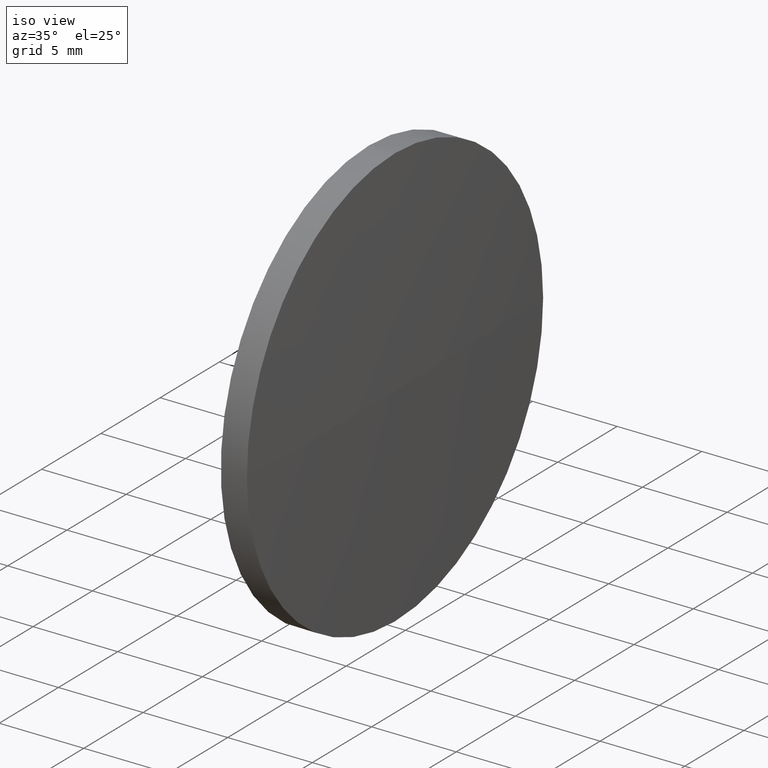
[diagram: clean part render]
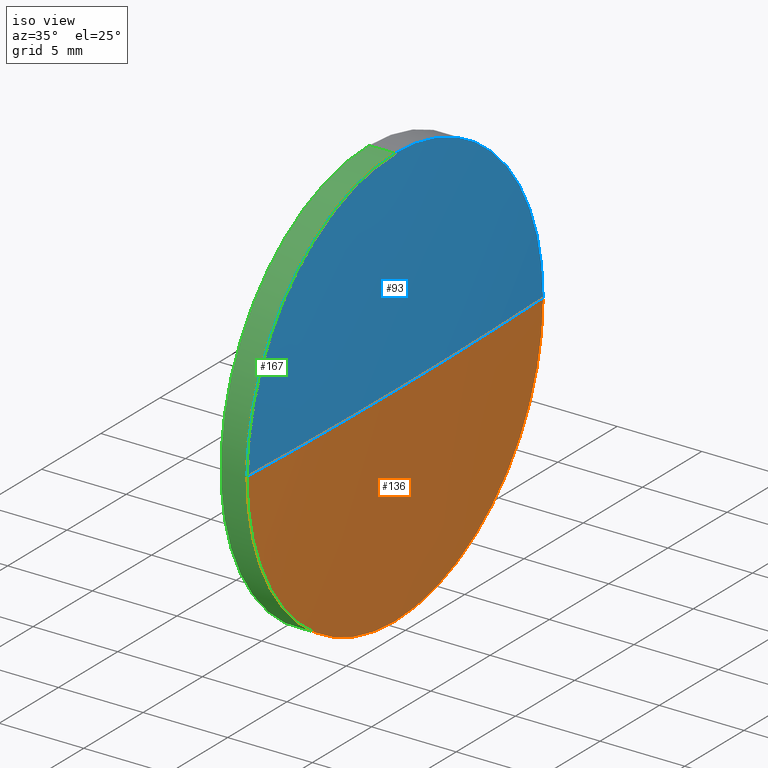
[diagram: same view with three faces highlighted in distinct colors, each labeled with its STEP entity id]
A machine part, iso view with three faces highlighted in distinct colors.
Their STEP definitions:

[orange] entity #136 — the highlighted spherical surface has radius 325.641 mm.
#1 = AXIS2_PLACEMENT_3D ( 'NONE', #71, #147, #174 ) ;
#2 = VERTEX_POINT ( 'NONE', #53 ) ;
#4 = DIRECTION ( 'NONE',  ( 0.0000000000000000000, -1.224646799147353200E-016, 1.000000000000000000 ) ) ;
#5 = ORIENTED_EDGE ( 'NONE', *, *, #157, .F. ) ;
#6 = AXIS2_PLACEMENT_3D ( 'NONE', #145, #30, #42 ) ;
#24 = EDGE_CURVE ( 'NONE', #170, #2, #151, .T. ) ;
#26 = EDGE_CURVE ( 'NONE', #41, #146, #180, .T. ) ;
#30 = DIRECTION ( 'NONE',  ( 0.0000000000000000000, 0.0000000000000000000, 1.000000000000000000 ) ) ;
#40 = EDGE_LOOP ( 'NONE', ( #49, #134, #5, #52 ) ) ;
#41 = VERTEX_POINT ( 'NONE', #85 ) ;
#42 = DIRECTION ( 'NONE',  ( 0.0000000000000000000, -1.000000000000000000, 0.0000000000000000000 ) ) ;
#49 = ORIENTED_EDGE ( 'NONE', *, *, #150, .F. ) ;
#52 = ORIENTED_EDGE ( 'NONE', *, *, #24, .F. ) ;
#53 = CARTESIAN_POINT ( 'NONE',  ( 484.6555688377202400, 64.61114533818170000, -12.49999999999999600 ) ) ;
#54 = DIRECTION ( 'NONE',  ( -1.000000000000000000, 0.0000000000000000000, 0.0000000000000000000 ) ) ;
#55 = DIRECTION ( 'NONE',  ( 0.0000000000000000000, -1.000000000000000000, -1.224646799147353200E-016 ) ) ;
#57 = CARTESIAN_POINT ( 'NONE',  ( 484.6555688377203000, 52.11114533818182100, 0.0000000000000000000 ) ) ;
#64 = CIRCLE ( 'NONE', #156, 325.6408333333307000 ) ;
#67 = DIRECTION ( 'NONE',  ( 0.0000000000000000000, 0.0000000000000000000, -1.000000000000000000 ) ) ;
#68 = DIRECTION ( 'NONE',  ( -1.000000000000000000, -0.0000000000000000000, -0.0000000000000000000 ) ) ;
#69 = DIRECTION ( 'NONE',  ( 0.0000000000000000000, 0.0000000000000000000, 1.000000000000000000 ) ) ;
#71 = CARTESIAN_POINT ( 'NONE',  ( 484.6555688377202400, 64.61114533818170000, 0.0000000000000000000 ) ) ;
#75 = CARTESIAN_POINT ( 'NONE',  ( 484.6555688377203000, 77.11114533818225400, 1.530808498934176500E-015 ) ) ;
#85 = CARTESIAN_POINT ( 'NONE',  ( 484.8955688377203600, 64.61114533818235400, 0.0000000000000000000 ) ) ;
#116 = FACE_OUTER_BOUND ( 'NONE', #40, .T. ) ;
#120 = CARTESIAN_POINT ( 'NONE',  ( 159.2547355043896000, 64.61114533818236800, 0.0000000000000000000 ) ) ;
#122 = CIRCLE ( 'NONE', #1, 12.49999999999999600 ) ;
#123 = AXIS2_PLACEMENT_3D ( 'NONE', #141, #68, #69 ) ;
#134 = ORIENTED_EDGE ( 'NONE', *, *, #26, .T. ) ;
#136 = ADVANCED_FACE ( 'NONE', ( #116 ), #137, .T. ) ;
#137 = SPHERICAL_SURFACE ( 'NONE', #6, 325.6408333333307000 ) ;
#141 = CARTESIAN_POINT ( 'NONE',  ( 484.6555688377202400, 64.61114533818170000, 0.0000000000000000000 ) ) ;
#144 = CARTESIAN_POINT ( 'NONE',  ( 159.2547355043896000, 64.61114533818236800, 0.0000000000000000000 ) ) ;
#145 = CARTESIAN_POINT ( 'NONE',  ( 159.2547355043896000, 64.61114533818236800, 0.0000000000000000000 ) ) ;
#146 = VERTEX_POINT ( 'NONE', #57 ) ;
#147 = DIRECTION ( 'NONE',  ( -1.000000000000000000, -0.0000000000000000000, -0.0000000000000000000 ) ) ;
#150 = EDGE_CURVE ( 'NONE', #41, #170, #64, .T. ) ;
#151 = CIRCLE ( 'NONE', #123, 12.49999999999999600 ) ;
#156 = AXIS2_PLACEMENT_3D ( 'NONE', #144, #4, #55 ) ;
#157 = EDGE_CURVE ( 'NONE', #2, #146, #122, .T. ) ;
#169 = AXIS2_PLACEMENT_3D ( 'NONE', #120, #67, #54 ) ;
#170 = VERTEX_POINT ( 'NONE', #75 ) ;
#174 = DIRECTION ( 'NONE',  ( 0.0000000000000000000, 0.0000000000000000000, 1.000000000000000000 ) ) ;
#180 = CIRCLE ( 'NONE', #169, 325.6408333333307000 ) ;

[blue] entity #93 — the highlighted spherical surface has radius 325.641 mm.
#4 = DIRECTION ( 'NONE',  ( 0.0000000000000000000, -1.224646799147353200E-016, 1.000000000000000000 ) ) ;
#14 = AXIS2_PLACEMENT_3D ( 'NONE', #86, #45, #162 ) ;
#17 = CARTESIAN_POINT ( 'NONE',  ( 484.6555688377202400, 64.61114533818170000, 12.49999999999999600 ) ) ;
#19 = DIRECTION ( 'NONE',  ( 0.0000000000000000000, -1.000000000000000000, 0.0000000000000000000 ) ) ;
#21 = DIRECTION ( 'NONE',  ( 0.0000000000000000000, 0.0000000000000000000, 1.000000000000000000 ) ) ;
#23 = ORIENTED_EDGE ( 'NONE', *, *, #150, .T. ) ;
#26 = EDGE_CURVE ( 'NONE', #41, #146, #180, .T. ) ;
#33 = ORIENTED_EDGE ( 'NONE', *, *, #88, .F. ) ;
#41 = VERTEX_POINT ( 'NONE', #85 ) ;
#43 = FACE_OUTER_BOUND ( 'NONE', #44, .T. ) ;
#44 = EDGE_LOOP ( 'NONE', ( #130, #23, #126, #33 ) ) ;
#45 = DIRECTION ( 'NONE',  ( -1.000000000000000000, -0.0000000000000000000, -0.0000000000000000000 ) ) ;
#46 = SPHERICAL_SURFACE ( 'NONE', #166, 325.6408333333307000 ) ;
#51 = EDGE_CURVE ( 'NONE', #111, #170, #138, .T. ) ;
#54 = DIRECTION ( 'NONE',  ( -1.000000000000000000, 0.0000000000000000000, 0.0000000000000000000 ) ) ;
#55 = DIRECTION ( 'NONE',  ( 0.0000000000000000000, -1.000000000000000000, -1.224646799147353200E-016 ) ) ;
#57 = CARTESIAN_POINT ( 'NONE',  ( 484.6555688377203000, 52.11114533818182100, 0.0000000000000000000 ) ) ;
#64 = CIRCLE ( 'NONE', #156, 325.6408333333307000 ) ;
#67 = DIRECTION ( 'NONE',  ( 0.0000000000000000000, 0.0000000000000000000, -1.000000000000000000 ) ) ;
#72 = CARTESIAN_POINT ( 'NONE',  ( 159.2547355043896000, 64.61114533818236800, 0.0000000000000000000 ) ) ;
#75 = CARTESIAN_POINT ( 'NONE',  ( 484.6555688377203000, 77.11114533818225400, 1.530808498934176500E-015 ) ) ;
#85 = CARTESIAN_POINT ( 'NONE',  ( 484.8955688377203600, 64.61114533818235400, 0.0000000000000000000 ) ) ;
#86 = CARTESIAN_POINT ( 'NONE',  ( 484.6555688377202400, 64.61114533818170000, 0.0000000000000000000 ) ) ;
#87 = CARTESIAN_POINT ( 'NONE',  ( 484.6555688377202400, 64.61114533818170000, 0.0000000000000000000 ) ) ;
#88 = EDGE_CURVE ( 'NONE', #146, #111, #168, .T. ) ;
#93 = ADVANCED_FACE ( 'NONE', ( #43 ), #46, .T. ) ;
#105 = AXIS2_PLACEMENT_3D ( 'NONE', #87, #124, #159 ) ;
#111 = VERTEX_POINT ( 'NONE', #17 ) ;
#120 = CARTESIAN_POINT ( 'NONE',  ( 159.2547355043896000, 64.61114533818236800, 0.0000000000000000000 ) ) ;
#124 = DIRECTION ( 'NONE',  ( -1.000000000000000000, -0.0000000000000000000, -0.0000000000000000000 ) ) ;
#126 = ORIENTED_EDGE ( 'NONE', *, *, #51, .F. ) ;
#130 = ORIENTED_EDGE ( 'NONE', *, *, #26, .F. ) ;
#138 = CIRCLE ( 'NONE', #14, 12.49999999999999600 ) ;
#144 = CARTESIAN_POINT ( 'NONE',  ( 159.2547355043896000, 64.61114533818236800, 0.0000000000000000000 ) ) ;
#146 = VERTEX_POINT ( 'NONE', #57 ) ;
#150 = EDGE_CURVE ( 'NONE', #41, #170, #64, .T. ) ;
#156 = AXIS2_PLACEMENT_3D ( 'NONE', #144, #4, #55 ) ;
#159 = DIRECTION ( 'NONE',  ( 0.0000000000000000000, 0.0000000000000000000, 1.000000000000000000 ) ) ;
#162 = DIRECTION ( 'NONE',  ( 0.0000000000000000000, 0.0000000000000000000, 1.000000000000000000 ) ) ;
#166 = AXIS2_PLACEMENT_3D ( 'NONE', #72, #21, #19 ) ;
#168 = CIRCLE ( 'NONE', #105, 12.49999999999999600 ) ;
#169 = AXIS2_PLACEMENT_3D ( 'NONE', #120, #67, #54 ) ;
#170 = VERTEX_POINT ( 'NONE', #75 ) ;
#180 = CIRCLE ( 'NONE', #169, 325.6408333333307000 ) ;

[green] entity #167 — the highlighted cylindrical surface (partial cylindrical patch) has radius 12.5 mm, axis along (-1, -0, -0).
#1 = AXIS2_PLACEMENT_3D ( 'NONE', #71, #147, #174 ) ;
#2 = VERTEX_POINT ( 'NONE', #53 ) ;
#3 = DIRECTION ( 'NONE',  ( -1.000000000000000000, -0.0000000000000000000, -0.0000000000000000000 ) ) ;
#7 = CARTESIAN_POINT ( 'NONE',  ( 483.1155688377202800, 64.61114533818170000, 12.49999999999999600 ) ) ;
#17 = CARTESIAN_POINT ( 'NONE',  ( 484.6555688377202400, 64.61114533818170000, 12.49999999999999600 ) ) ;
#18 = CARTESIAN_POINT ( 'NONE',  ( 480.7499529349593100, 64.61114533818170000, -12.49999999999999600 ) ) ;
#20 = DIRECTION ( 'NONE',  ( -1.000000000000000000, -0.0000000000000000000, -0.0000000000000000000 ) ) ;
#22 = CIRCLE ( 'NONE', #94, 12.49999999999999600 ) ;
#27 = VECTOR ( 'NONE', #89, 1000.000000000000000 ) ;
#28 = ORIENTED_EDGE ( 'NONE', *, *, #157, .T. ) ;
#29 = DIRECTION ( 'NONE',  ( 0.0000000000000000000, 0.0000000000000000000, 1.000000000000000000 ) ) ;
#32 = VECTOR ( 'NONE', #173, 1000.000000000000000 ) ;
#39 = CYLINDRICAL_SURFACE ( 'NONE', #143, 12.49999999999999600 ) ;
#53 = CARTESIAN_POINT ( 'NONE',  ( 484.6555688377202400, 64.61114533818170000, -12.49999999999999600 ) ) ;
#57 = CARTESIAN_POINT ( 'NONE',  ( 484.6555688377203000, 52.11114533818182100, 0.0000000000000000000 ) ) ;
#59 = DIRECTION ( 'NONE',  ( 0.0000000000000000000, 0.0000000000000000000, 1.000000000000000000 ) ) ;
#66 = ORIENTED_EDGE ( 'NONE', *, *, #78, .T. ) ;
#71 = CARTESIAN_POINT ( 'NONE',  ( 484.6555688377202400, 64.61114533818170000, 0.0000000000000000000 ) ) ;
#78 = EDGE_CURVE ( 'NONE', #111, #154, #102, .T. ) ;
#79 = LINE ( 'NONE', #18, #27 ) ;
#80 = ORIENTED_EDGE ( 'NONE', *, *, #95, .F. ) ;
#81 = FACE_OUTER_BOUND ( 'NONE', #83, .T. ) ;
#83 = EDGE_LOOP ( 'NONE', ( #80, #28, #108, #66, #140 ) ) ;
#87 = CARTESIAN_POINT ( 'NONE',  ( 484.6555688377202400, 64.61114533818170000, 0.0000000000000000000 ) ) ;
#88 = EDGE_CURVE ( 'NONE', #146, #111, #168, .T. ) ;
#89 = DIRECTION ( 'NONE',  ( -1.000000000000000000, -0.0000000000000000000, -0.0000000000000000000 ) ) ;
#91 = VERTEX_POINT ( 'NONE', #118 ) ;
#94 = AXIS2_PLACEMENT_3D ( 'NONE', #129, #3, #59 ) ;
#95 = EDGE_CURVE ( 'NONE', #2, #91, #79, .T. ) ;
#102 = LINE ( 'NONE', #172, #32 ) ;
#105 = AXIS2_PLACEMENT_3D ( 'NONE', #87, #124, #159 ) ;
#108 = ORIENTED_EDGE ( 'NONE', *, *, #88, .T. ) ;
#109 = CARTESIAN_POINT ( 'NONE',  ( 480.7499529349593100, 64.61114533818170000, 0.0000000000000000000 ) ) ;
#111 = VERTEX_POINT ( 'NONE', #17 ) ;
#118 = CARTESIAN_POINT ( 'NONE',  ( 483.1155688377202800, 64.61114533818170000, -12.49999999999999600 ) ) ;
#122 = CIRCLE ( 'NONE', #1, 12.49999999999999600 ) ;
#124 = DIRECTION ( 'NONE',  ( -1.000000000000000000, -0.0000000000000000000, -0.0000000000000000000 ) ) ;
#129 = CARTESIAN_POINT ( 'NONE',  ( 483.1155688377202800, 64.61114533818170000, 0.0000000000000000000 ) ) ;
#140 = ORIENTED_EDGE ( 'NONE', *, *, #182, .F. ) ;
#143 = AXIS2_PLACEMENT_3D ( 'NONE', #109, #20, #29 ) ;
#146 = VERTEX_POINT ( 'NONE', #57 ) ;
#147 = DIRECTION ( 'NONE',  ( -1.000000000000000000, -0.0000000000000000000, -0.0000000000000000000 ) ) ;
#154 = VERTEX_POINT ( 'NONE', #7 ) ;
#157 = EDGE_CURVE ( 'NONE', #2, #146, #122, .T. ) ;
#159 = DIRECTION ( 'NONE',  ( 0.0000000000000000000, 0.0000000000000000000, 1.000000000000000000 ) ) ;
#167 = ADVANCED_FACE ( 'NONE', ( #81 ), #39, .T. ) ;
#168 = CIRCLE ( 'NONE', #105, 12.49999999999999600 ) ;
#172 = CARTESIAN_POINT ( 'NONE',  ( 480.7499529349593100, 64.61114533818170000, 12.49999999999999600 ) ) ;
#173 = DIRECTION ( 'NONE',  ( -1.000000000000000000, -0.0000000000000000000, -0.0000000000000000000 ) ) ;
#174 = DIRECTION ( 'NONE',  ( 0.0000000000000000000, 0.0000000000000000000, 1.000000000000000000 ) ) ;
#182 = EDGE_CURVE ( 'NONE', #91, #154, #22, .T. ) ;